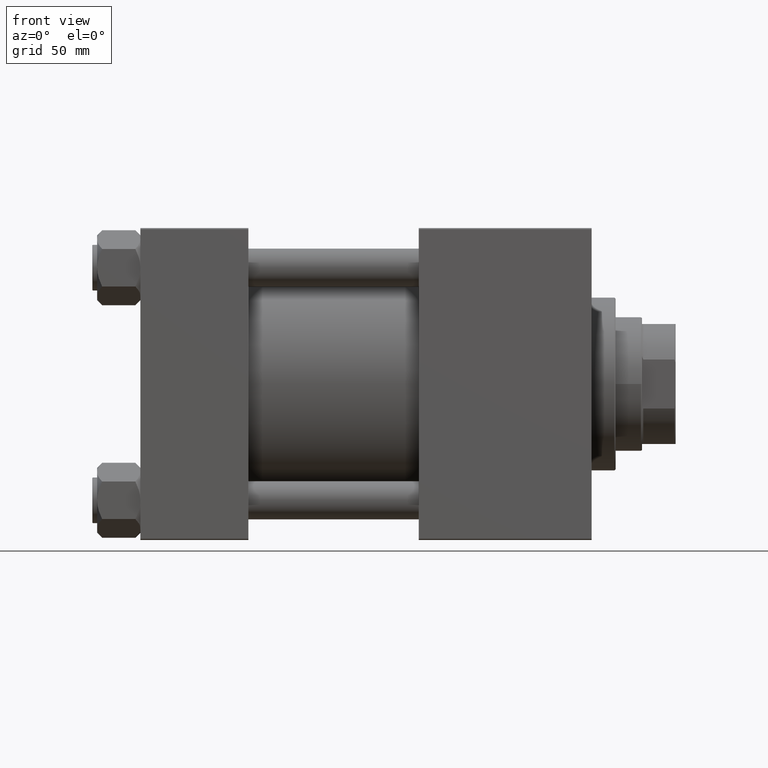
[diagram: clean part render]
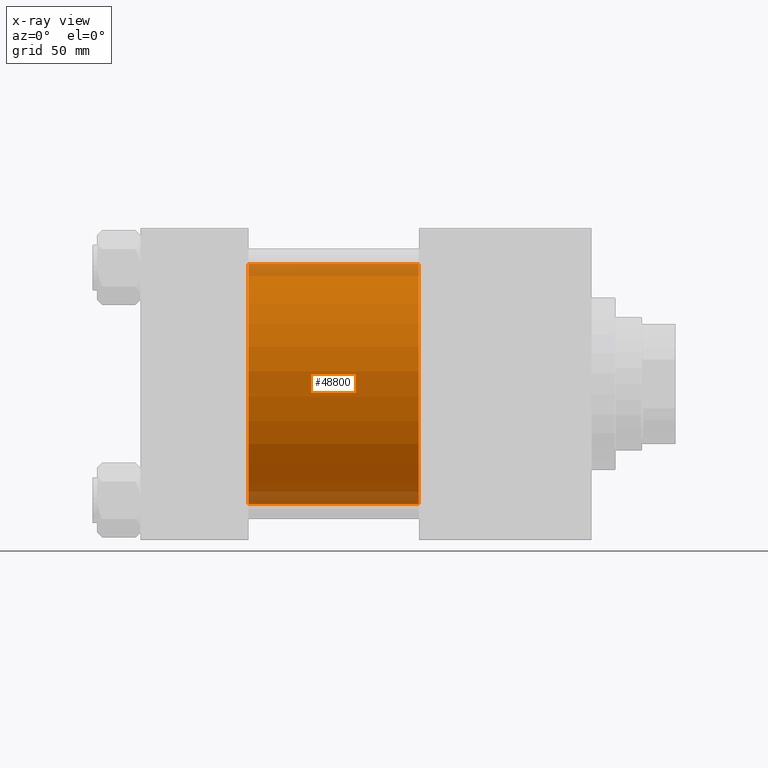
[diagram: x-ray — body ghosted, one internal face saturated and labeled with its STEP entity id]
A machine part, front view, then the same camera in x-ray: the body is ghosted and one INTERNAL B-rep face — a face not visible from any outside direction — is saturated and labeled: STEP entity #48800.
In plain terms, the highlighted cylindrical surface (partial cylindrical patch) has radius 50 mm, axis along (-1, -0, -0).
Its self-contained STEP definition (entity closure, byte-faithful):
#226 = DIRECTION ( 'NONE',  ( 1.000000000000000000, 0.000000000000000000, 0.000000000000000000 ) ) ;
#1136 = CARTESIAN_POINT ( 'NONE',  ( 45.00000000000000000, -2.602085213965210642E-15, 50.00000000000000000 ) ) ;
#1247 = ORIENTED_EDGE ( 'NONE', *, *, #38336, .F. ) ;
#3593 = EDGE_CURVE ( 'NONE', #29004, #45613, #11846, .T. ) ;
#3701 = VERTEX_POINT ( 'NONE', #20572 ) ;
#5035 = ORIENTED_EDGE ( 'NONE', *, *, #34511, .F. ) ;
#6555 = FACE_OUTER_BOUND ( 'NONE', #25260, .T. ) ;
#8695 = DIRECTION ( 'NONE',  ( -1.000000000000000000, -0.000000000000000000, -0.000000000000000000 ) ) ;
#10429 = CYLINDRICAL_SURFACE ( 'NONE', #41964, 50.00000000000000000 ) ;
#10676 = CARTESIAN_POINT ( 'NONE',  ( 115.9999999999999858, 3.521148781771555838E-15, -50.00000000000000000 ) ) ;
#11846 = LINE ( 'NONE', #27531, #21658 ) ;
#13017 = VECTOR ( 'NONE', #8695, 1000.000000000000000 ) ;
#13520 = CARTESIAN_POINT ( 'NONE',  ( 115.9999999999999858, -2.602085213965210642E-15, 0.000000000000000000 ) ) ;
#14214 = DIRECTION ( 'NONE',  ( 1.000000000000000000, 0.000000000000000000, 0.000000000000000000 ) ) ;
#19726 = LINE ( 'NONE', #39043, #13017 ) ;
#20572 = CARTESIAN_POINT ( 'NONE',  ( 115.9999999999999858, -2.602085213965210642E-15, 50.00000000000000000 ) ) ;
#21658 = VECTOR ( 'NONE', #43214, 1000.000000000000000 ) ;
#22146 = CARTESIAN_POINT ( 'NONE',  ( 115.9999999999999858, -2.602085213965210642E-15, 0.000000000000000000 ) ) ;
#25260 = EDGE_LOOP ( 'NONE', ( #45922, #39226, #1247, #5035 ) ) ;
#25590 = DIRECTION ( 'NONE',  ( -1.000000000000000000, -0.000000000000000000, -0.000000000000000000 ) ) ;
#27531 = CARTESIAN_POINT ( 'NONE',  ( 115.9999999999999858, 3.521148781771555838E-15, -50.00000000000000000 ) ) ;
#29004 = VERTEX_POINT ( 'NONE', #10676 ) ;
#31175 = CIRCLE ( 'NONE', #37757, 50.00000000000000000 ) ;
#34236 = CARTESIAN_POINT ( 'NONE',  ( 45.00000000000000000, 3.521148781771555838E-15, -50.00000000000000000 ) ) ;
#34511 = EDGE_CURVE ( 'NONE', #3701, #43779, #19726, .T. ) ;
#36383 = EDGE_CURVE ( 'NONE', #3701, #29004, #39357, .T. ) ;
#37757 = AXIS2_PLACEMENT_3D ( 'NONE', #38807, #226, #42412 ) ;
#38336 = EDGE_CURVE ( 'NONE', #43779, #45613, #31175, .T. ) ;
#38807 = CARTESIAN_POINT ( 'NONE',  ( 45.00000000000000000, -2.602085213965210642E-15, 0.000000000000000000 ) ) ;
#39043 = CARTESIAN_POINT ( 'NONE',  ( 115.9999999999999858, -2.602085213965210642E-15, 50.00000000000000000 ) ) ;
#39226 = ORIENTED_EDGE ( 'NONE', *, *, #3593, .T. ) ;
#39357 = CIRCLE ( 'NONE', #45947, 50.00000000000000000 ) ;
#41964 = AXIS2_PLACEMENT_3D ( 'NONE', #13520, #25590, #49520 ) ;
#42412 = DIRECTION ( 'NONE',  ( 0.000000000000000000, 0.000000000000000000, -1.000000000000000000 ) ) ;
#43214 = DIRECTION ( 'NONE',  ( -1.000000000000000000, -0.000000000000000000, -0.000000000000000000 ) ) ;
#43779 = VERTEX_POINT ( 'NONE', #1136 ) ;
#45580 = DIRECTION ( 'NONE',  ( 0.000000000000000000, 0.000000000000000000, -1.000000000000000000 ) ) ;
#45613 = VERTEX_POINT ( 'NONE', #34236 ) ;
#45922 = ORIENTED_EDGE ( 'NONE', *, *, #36383, .T. ) ;
#45947 = AXIS2_PLACEMENT_3D ( 'NONE', #22146, #14214, #45580 ) ;
#48800 = ADVANCED_FACE ( 'NONE', ( #6555 ), #10429, .F. ) ;
#49520 = DIRECTION ( 'NONE',  ( 0.000000000000000000, 0.000000000000000000, 1.000000000000000000 ) ) ;